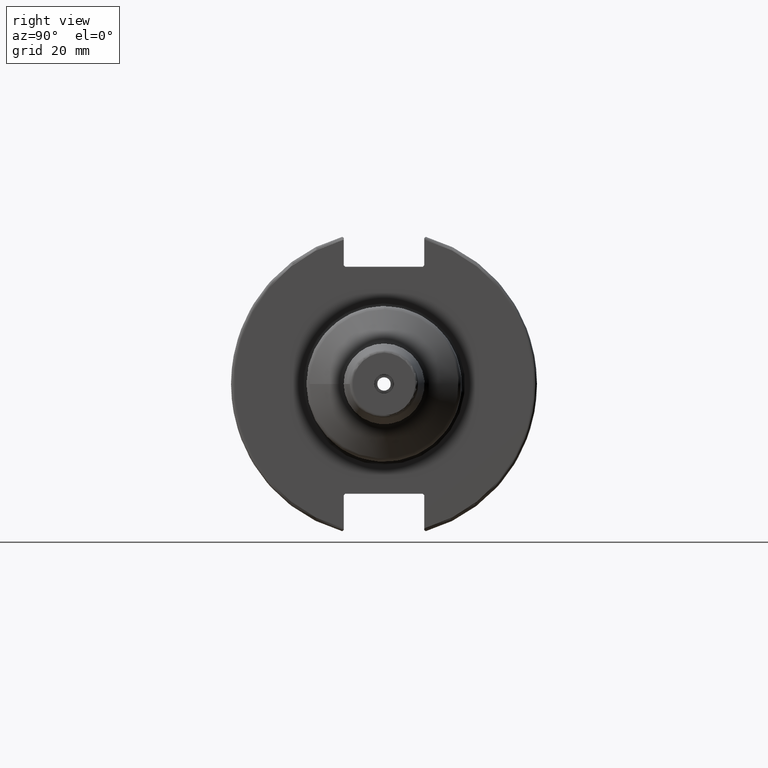
[diagram: clean part render]
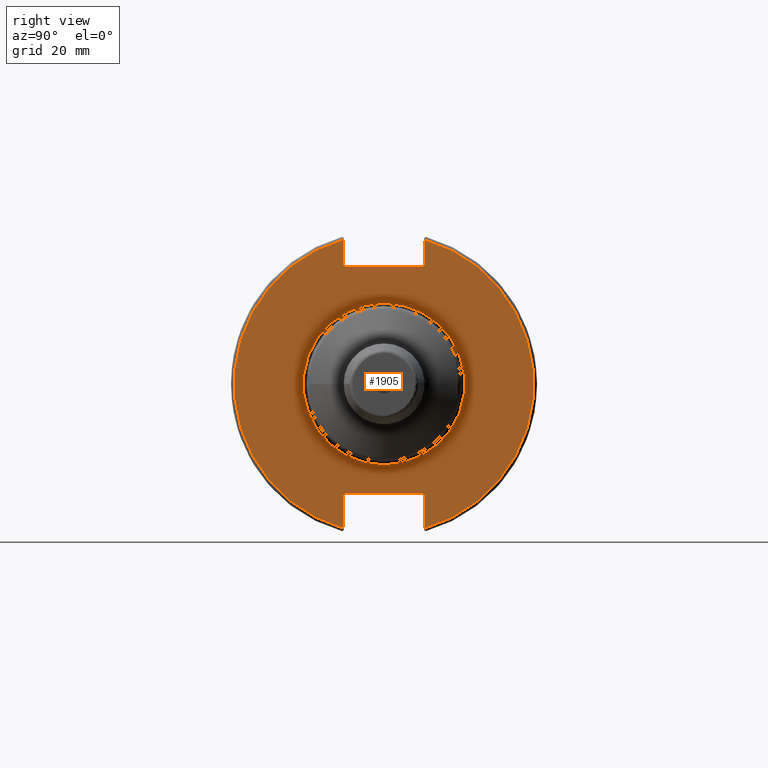
[diagram: same view with one face highlighted and labeled with its STEP entity id]
A machine part, right view. The second image highlights one B-rep face of the part: STEP entity #1905.
In plain terms, the highlighted planar face has unit normal (1, 0, 0).
Its self-contained STEP definition (entity closure, byte-faithful):
#76=FACE_BOUND('',#531,.T.);
#94=PLANE('',#2096);
#162=LINE('',#3003,#268);
#163=LINE('',#3005,#269);
#164=LINE('',#3007,#270);
#165=LINE('',#3009,#271);
#166=LINE('',#3011,#272);
#167=LINE('',#3015,#273);
#168=LINE('',#3017,#274);
#169=LINE('',#3019,#275);
#170=LINE('',#3021,#276);
#171=LINE('',#3022,#277);
#268=VECTOR('',#2439,10.);
#269=VECTOR('',#2440,10.);
#270=VECTOR('',#2441,10.);
#271=VECTOR('',#2442,10.);
#272=VECTOR('',#2443,10.);
#273=VECTOR('',#2446,10.);
#274=VECTOR('',#2447,10.);
#275=VECTOR('',#2448,10.);
#276=VECTOR('',#2449,10.);
#277=VECTOR('',#2450,10.);
#419=FACE_OUTER_BOUND('',#530,.T.);
#530=EDGE_LOOP('',(#1397,#1398,#1399,#1400,#1401,#1402,#1403,#1404,#1405,
#1406,#1407,#1408));
#531=EDGE_LOOP('',(#1409));
#688=CIRCLE('',#2091,26.);
#692=CIRCLE('',#2097,48.2125);
#693=CIRCLE('',#2098,48.2125);
#811=VERTEX_POINT('',#2988);
#814=VERTEX_POINT('',#2999);
#815=VERTEX_POINT('',#3000);
#816=VERTEX_POINT('',#3002);
#817=VERTEX_POINT('',#3004);
#818=VERTEX_POINT('',#3006);
#819=VERTEX_POINT('',#3008);
#820=VERTEX_POINT('',#3010);
#821=VERTEX_POINT('',#3012);
#822=VERTEX_POINT('',#3014);
#823=VERTEX_POINT('',#3016);
#824=VERTEX_POINT('',#3018);
#825=VERTEX_POINT('',#3020);
#1030=EDGE_CURVE('',#811,#811,#688,.T.);
#1035=EDGE_CURVE('',#814,#815,#692,.T.);
#1036=EDGE_CURVE('',#814,#816,#162,.T.);
#1037=EDGE_CURVE('',#817,#816,#163,.T.);
#1038=EDGE_CURVE('',#817,#818,#164,.T.);
#1039=EDGE_CURVE('',#819,#818,#165,.T.);
#1040=EDGE_CURVE('',#819,#820,#166,.T.);
#1041=EDGE_CURVE('',#821,#820,#693,.T.);
#1042=EDGE_CURVE('',#821,#822,#167,.T.);
#1043=EDGE_CURVE('',#823,#822,#168,.T.);
#1044=EDGE_CURVE('',#823,#824,#169,.T.);
#1045=EDGE_CURVE('',#825,#824,#170,.T.);
#1046=EDGE_CURVE('',#825,#815,#171,.T.);
#1397=ORIENTED_EDGE('',*,*,#1035,.F.);
#1398=ORIENTED_EDGE('',*,*,#1036,.T.);
#1399=ORIENTED_EDGE('',*,*,#1037,.F.);
#1400=ORIENTED_EDGE('',*,*,#1038,.T.);
#1401=ORIENTED_EDGE('',*,*,#1039,.F.);
#1402=ORIENTED_EDGE('',*,*,#1040,.T.);
#1403=ORIENTED_EDGE('',*,*,#1041,.F.);
#1404=ORIENTED_EDGE('',*,*,#1042,.T.);
#1405=ORIENTED_EDGE('',*,*,#1043,.F.);
#1406=ORIENTED_EDGE('',*,*,#1044,.T.);
#1407=ORIENTED_EDGE('',*,*,#1045,.F.);
#1408=ORIENTED_EDGE('',*,*,#1046,.T.);
#1409=ORIENTED_EDGE('',*,*,#1030,.F.);
#1905=ADVANCED_FACE('',(#419,#76),#94,.T.);
#2091=AXIS2_PLACEMENT_3D('',#2990,#2424,#2425);
#2096=AXIS2_PLACEMENT_3D('',#2998,#2435,#2436);
#2097=AXIS2_PLACEMENT_3D('',#3001,#2437,#2438);
#2098=AXIS2_PLACEMENT_3D('',#3013,#2444,#2445);
#2424=DIRECTION('center_axis',(1.,0.,0.));
#2425=DIRECTION('ref_axis',(0.,-1.,-1.22464679914735E-16));
#2435=DIRECTION('center_axis',(1.,0.,0.));
#2436=DIRECTION('ref_axis',(0.,0.,-1.));
#2437=DIRECTION('center_axis',(-1.,0.,0.));
#2438=DIRECTION('ref_axis',(0.,1.,-6.12323399573677E-17));
#2439=DIRECTION('',(0.,0.,-1.));
#2440=DIRECTION('',(0.,0.707106781186549,0.707106781186546));
#2441=DIRECTION('',(0.,-1.,0.));
#2442=DIRECTION('',(0.,0.707106781186549,-0.707106781186546));
#2443=DIRECTION('',(0.,0.,1.));
#2444=DIRECTION('center_axis',(-1.,0.,0.));
#2445=DIRECTION('ref_axis',(0.,-1.,1.60812264967664E-16));
#2446=DIRECTION('',(0.,0.,1.));
#2447=DIRECTION('',(0.,-0.707106781186549,-0.707106781186546));
#2448=DIRECTION('',(0.,1.,0.));
#2449=DIRECTION('',(0.,-0.707106781186548,0.707106781186548));
#2450=DIRECTION('',(0.,0.,-1.));
#2988=CARTESIAN_POINT('',(19.05,-3.18408167778312E-15,-26.));
#2990=CARTESIAN_POINT('Origin',(19.05,0.,0.));
#2998=CARTESIAN_POINT('Origin',(19.05,0.,0.));
#2999=CARTESIAN_POINT('',(19.05,12.95,46.4407434937254));
#3000=CARTESIAN_POINT('',(19.05,12.95,-46.4407434937254));
#3001=CARTESIAN_POINT('Origin',(19.05,0.,0.));
#3002=CARTESIAN_POINT('',(19.05,12.95,38.219));
#3003=CARTESIAN_POINT('',(19.05,12.95,18.8595));
#3004=CARTESIAN_POINT('',(19.05,12.45,37.719));
#3005=CARTESIAN_POINT('',(19.05,0.0327499999999836,25.30175));
#3006=CARTESIAN_POINT('',(19.05,-12.45,37.719));
#3007=CARTESIAN_POINT('',(19.05,0.,37.719));
#3008=CARTESIAN_POINT('',(19.05,-12.95,38.219));
#3009=CARTESIAN_POINT('',(19.05,-0.0327499999999817,25.30175));
#3010=CARTESIAN_POINT('',(19.05,-12.95,46.4407434937254));
#3011=CARTESIAN_POINT('',(19.05,-12.95,18.8595));
#3012=CARTESIAN_POINT('',(19.05,-12.95,-46.4407434937254));
#3013=CARTESIAN_POINT('Origin',(19.05,0.,0.));
#3014=CARTESIAN_POINT('',(19.05,-12.95,-35.806));
#3015=CARTESIAN_POINT('',(19.05,-12.95,-17.653));
#3016=CARTESIAN_POINT('',(19.05,-12.45,-35.306));
#3017=CARTESIAN_POINT('',(19.05,-0.635999999999989,-23.492));
#3018=CARTESIAN_POINT('',(19.05,12.45,-35.306));
#3019=CARTESIAN_POINT('',(19.05,-3.88578058618805E-15,-35.306));
#3020=CARTESIAN_POINT('',(19.05,12.95,-35.806));
#3021=CARTESIAN_POINT('',(19.05,0.635999999999995,-23.492));
#3022=CARTESIAN_POINT('',(19.05,12.95,-17.653));